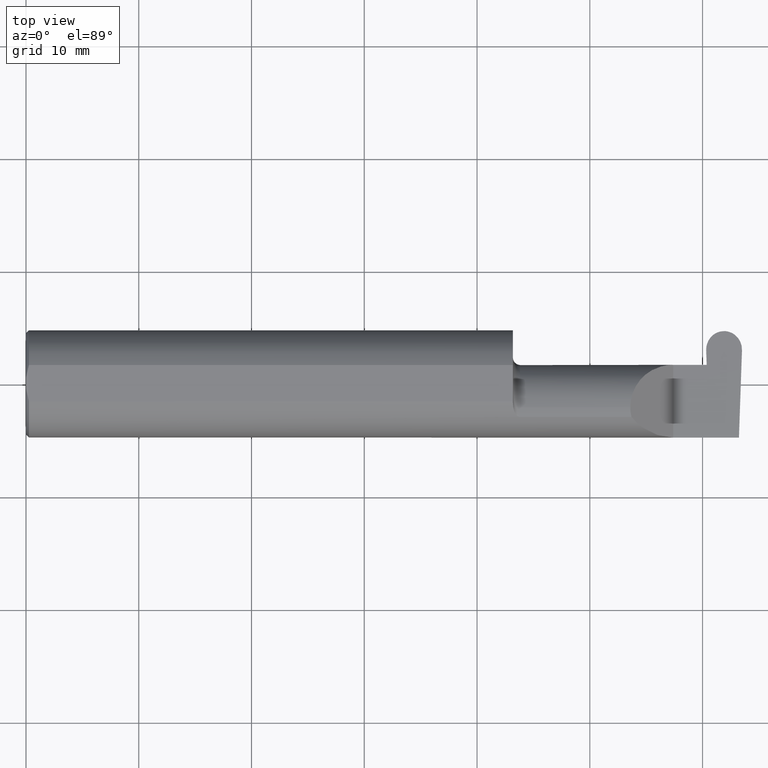
[diagram: clean part render]
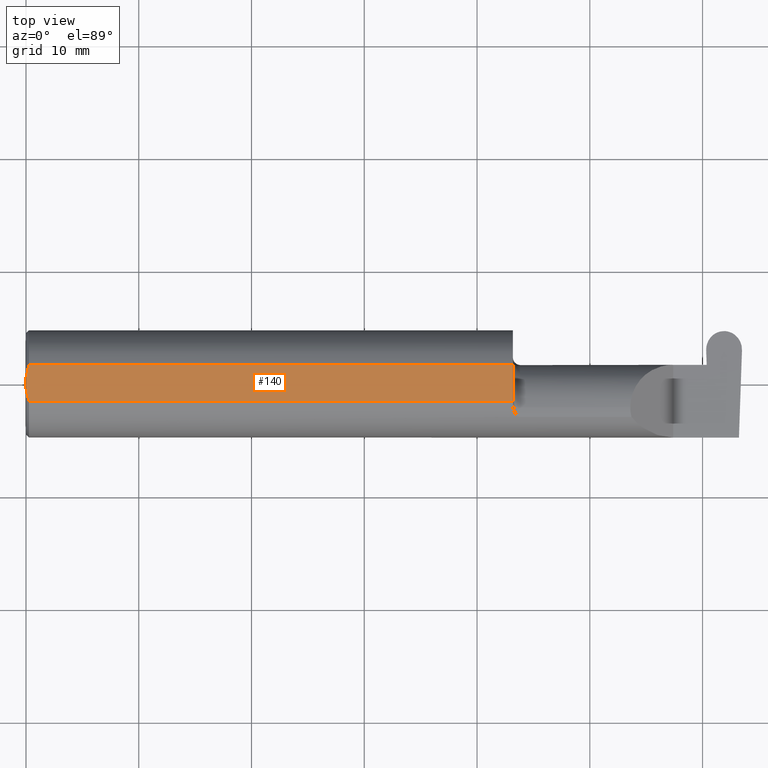
[diagram: same view with one face highlighted and labeled with its STEP entity id]
A machine part, top view. The second image highlights one B-rep face of the part: STEP entity #140.
In plain terms, the highlighted planar face has unit normal (0, 0, 1).
Its self-contained STEP definition (entity closure, byte-faithful):
#13 = EDGE_CURVE ( 'NONE', #93, #87, #415, .T. ) ;
#39 = CARTESIAN_POINT ( 'NONE',  ( 0.000000000000000000, -0.06325108694718235836, 0.1763499999999999235 ) ) ;
#52 = CARTESIAN_POINT ( 'NONE',  ( 2.876828993045917215, 0.1873499999999998500, 0.1763499999999999235 ) ) ;
#56 = ORIENTED_EDGE ( 'NONE', *, *, #63, .F. ) ;
#57 = AXIS2_PLACEMENT_3D ( 'NONE', #52, #193, #319 ) ;
#63 = EDGE_CURVE ( 'NONE', #596, #579, #410, .T. ) ;
#66 = FACE_OUTER_BOUND ( 'NONE', #503, .T. ) ;
#83 = CARTESIAN_POINT ( 'NONE',  ( 0.005155213631852493573, 0.04890080824240055496, 0.1763499999999999235 ) ) ;
#87 = VERTEX_POINT ( 'NONE', #347 ) ;
#91 = EDGE_CURVE ( 'NONE', #232, #93, #600, .T. ) ;
#93 = VERTEX_POINT ( 'NONE', #130 ) ;
#124 = EDGE_CURVE ( 'NONE', #232, #596, #194, .T. ) ;
#130 = CARTESIAN_POINT ( 'NONE',  ( 1.699999999999999956, -0.06325108694718287183, 0.1763499999999999235 ) ) ;
#140 = ADVANCED_FACE ( 'NONE', ( #66 ), #492, .T. ) ;
#143 = CARTESIAN_POINT ( 'NONE',  ( 0.01000000000000013205, -0.06325108694718235836, 0.1763499999999999235 ) ) ;
#193 = DIRECTION ( 'NONE',  ( 0.000000000000000000, 0.000000000000000000, 1.000000000000000000 ) ) ;
#194 = B_SPLINE_CURVE_WITH_KNOTS ( 'NONE', 3,
 ( #763, #616, #370, #747 ),
 .UNSPECIFIED., .F., .F.,
 ( 4, 4 ),
 ( 0.009771445421851331775, 0.01092787937989104369 ),
 .UNSPECIFIED. ) ;
#232 = VERTEX_POINT ( 'NONE', #143 ) ;
#244 = CARTESIAN_POINT ( 'NONE',  ( 0.000000000000000000, 0.01880691362238934988, 0.1763499999999999235 ) ) ;
#252 = CARTESIAN_POINT ( 'NONE',  ( 0.000000000000000000, -0.01880691362238934641, 0.1763499999999999235 ) ) ;
#258 = ORIENTED_EDGE ( 'NONE', *, *, #686, .F. ) ;
#263 = DIRECTION ( 'NONE',  ( -1.000000000000000000, -0.000000000000000000, -0.000000000000000000 ) ) ;
#304 = CARTESIAN_POINT ( 'NONE',  ( 0.01000000000000013205, 0.06325108694718235836, 0.1763499999999999235 ) ) ;
#305 = DIRECTION ( 'NONE',  ( 1.000000000000000000, 0.000000000000000000, 0.000000000000000000 ) ) ;
#319 = DIRECTION ( 'NONE',  ( 1.000000000000000000, 0.000000000000000000, -0.000000000000000000 ) ) ;
#343 = VECTOR ( 'NONE', #537, 39.37007874015748143 ) ;
#347 = CARTESIAN_POINT ( 'NONE',  ( 1.699999999999999956, 0.06325108694718235836, 0.1763499999999999235 ) ) ;
#370 = CARTESIAN_POINT ( 'NONE',  ( 0.001595548104417008695, -0.03385300050298640367, 0.1763499999999999235 ) ) ;
#386 = VECTOR ( 'NONE', #424, 39.37007874015748143 ) ;
#410 = LINE ( 'NONE', #611, #386 ) ;
#415 = LINE ( 'NONE', #545, #343 ) ;
#424 = DIRECTION ( 'NONE',  ( -0.000000000000000000, 1.000000000000000000, -0.000000000000000000 ) ) ;
#456 = CARTESIAN_POINT ( 'NONE',  ( 0.000000000000000000, 0.06325108694718235836, 0.1763499999999999235 ) ) ;
#460 = LINE ( 'NONE', #456, #774 ) ;
#492 = PLANE ( 'NONE',  #57 ) ;
#503 = EDGE_LOOP ( 'NONE', ( #657, #779, #810, #258, #56, #650 ) ) ;
#505 = CARTESIAN_POINT ( 'NONE',  ( 0.01000000000000013205, 0.06325108694718235836, 0.1763499999999999235 ) ) ;
#537 = DIRECTION ( 'NONE',  ( 0.000000000000000000, 1.000000000000000000, 0.000000000000000000 ) ) ;
#545 = CARTESIAN_POINT ( 'NONE',  ( 1.699999999999999956, 0.1873499999999998500, 0.1763499999999999235 ) ) ;
#579 = VERTEX_POINT ( 'NONE', #244 ) ;
#585 = CARTESIAN_POINT ( 'NONE',  ( 0.000000000000000000, 0.01880691362238934988, 0.1763499999999999235 ) ) ;
#596 = VERTEX_POINT ( 'NONE', #252 ) ;
#600 = LINE ( 'NONE', #39, #622 ) ;
#611 = CARTESIAN_POINT ( 'NONE',  ( 0.000000000000000000, 0.1873499999999998500, 0.1763499999999999235 ) ) ;
#613 = VERTEX_POINT ( 'NONE', #304 ) ;
#616 = CARTESIAN_POINT ( 'NONE',  ( 0.005151108632379722968, -0.04888864921576022843, 0.1763499999999999235 ) ) ;
#622 = VECTOR ( 'NONE', #305, 39.37007874015748143 ) ;
#640 = CARTESIAN_POINT ( 'NONE',  ( 0.001616639753276021213, 0.03405189565400638246, 0.1763499999999999235 ) ) ;
#650 = ORIENTED_EDGE ( 'NONE', *, *, #124, .F. ) ;
#657 = ORIENTED_EDGE ( 'NONE', *, *, #91, .T. ) ;
#659 = B_SPLINE_CURVE_WITH_KNOTS ( 'NONE', 3,
 ( #585, #640, #83, #505 ),
 .UNSPECIFIED., .F., .F.,
 ( 4, 4 ),
 ( 0.01188664626022242071, 0.01304646959483746725 ),
 .UNSPECIFIED. ) ;
#686 = EDGE_CURVE ( 'NONE', #579, #613, #659, .T. ) ;
#724 = EDGE_CURVE ( 'NONE', #87, #613, #460, .T. ) ;
#747 = CARTESIAN_POINT ( 'NONE',  ( 0.000000000000000000, -0.01880691362238934641, 0.1763499999999999235 ) ) ;
#763 = CARTESIAN_POINT ( 'NONE',  ( 0.01000000000000013205, -0.06325108694718235836, 0.1763499999999999235 ) ) ;
#774 = VECTOR ( 'NONE', #263, 39.37007874015748143 ) ;
#779 = ORIENTED_EDGE ( 'NONE', *, *, #13, .T. ) ;
#810 = ORIENTED_EDGE ( 'NONE', *, *, #724, .T. ) ;